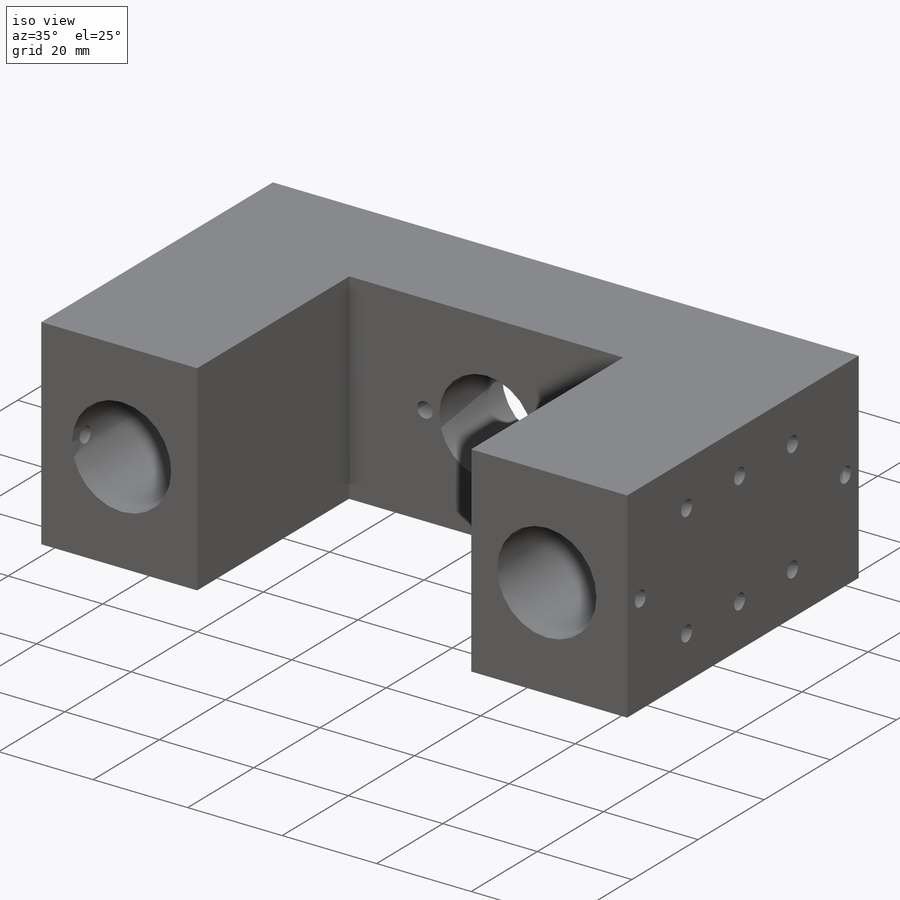
[diagram: iso view]
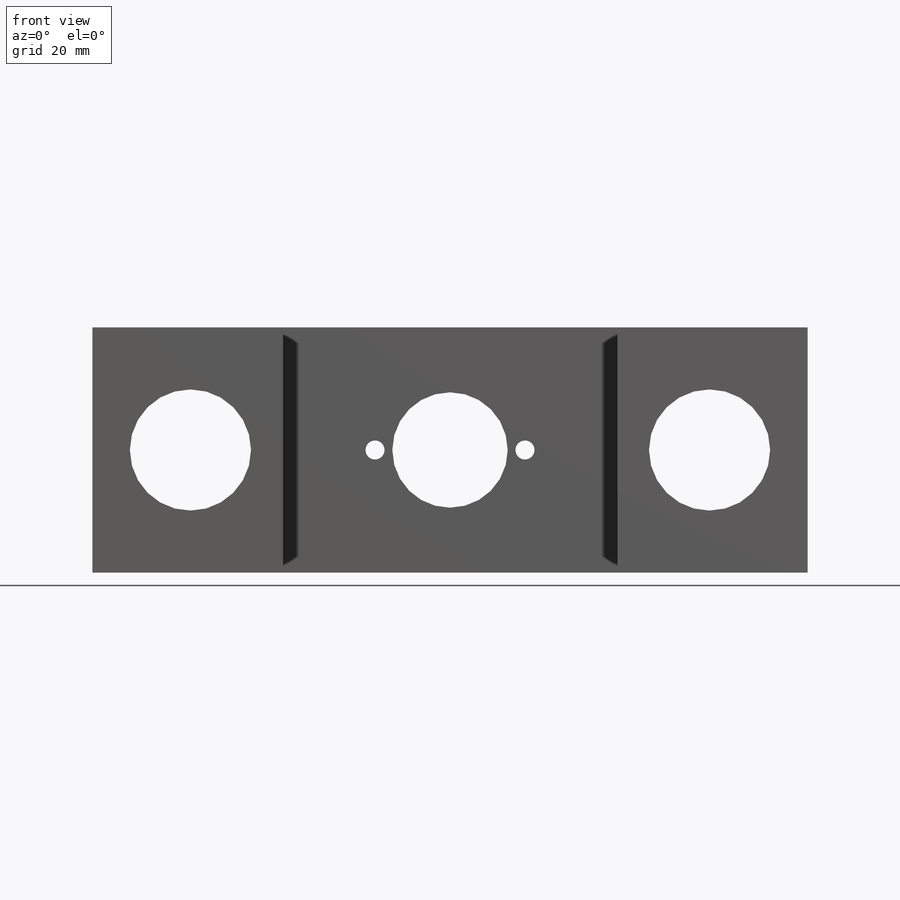
[diagram: front view]
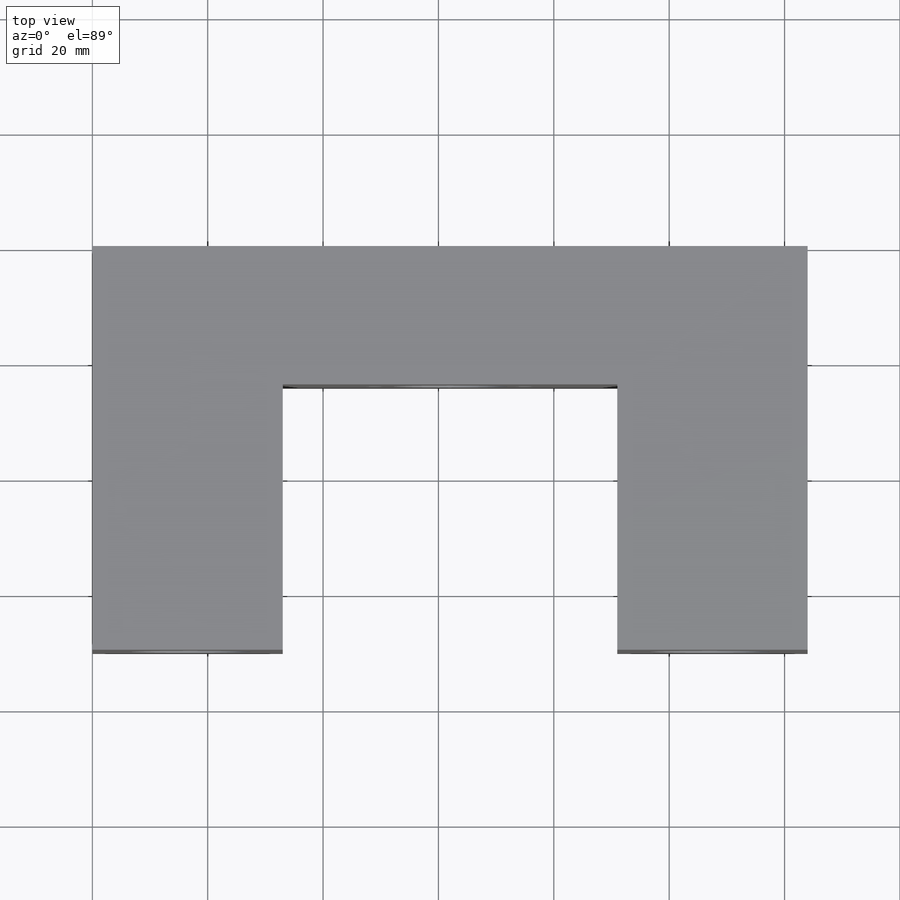
[diagram: top view]
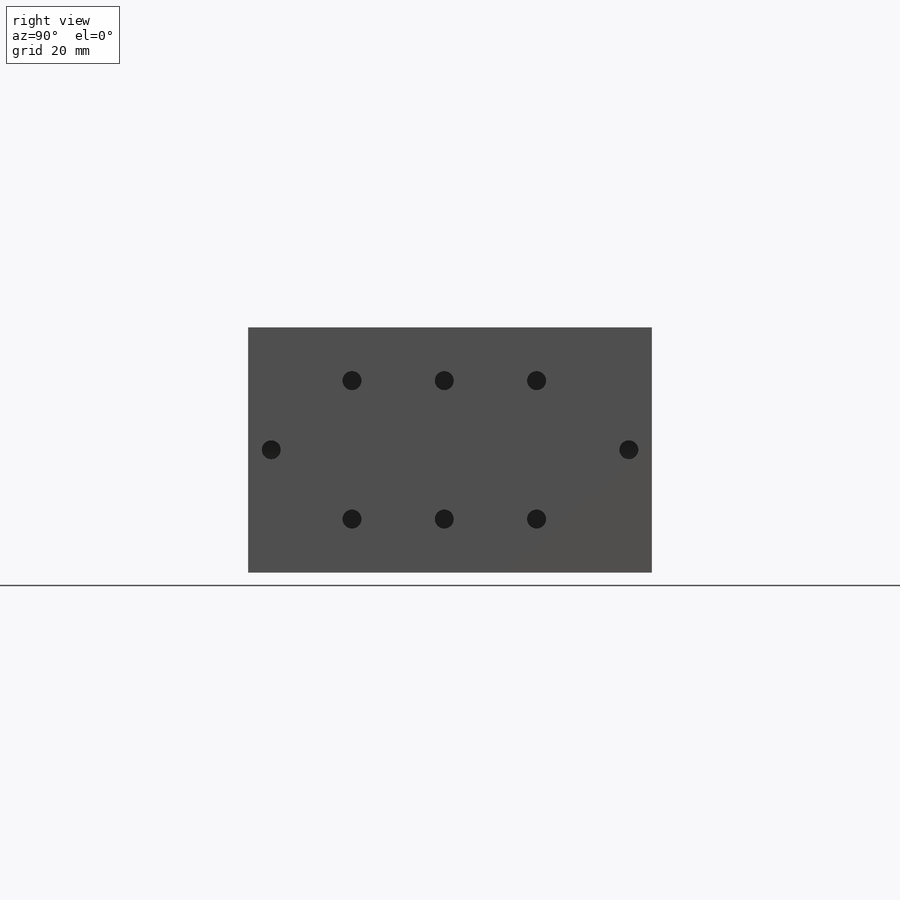
[diagram: right view]
SOLIDWORKS PART (.sldprt)
format: sldprt  version: not decoded by parser v0  size: 335,360 bytes
history: native  units: mm
features: sketch x6, cut_extrude x5, material x1, extrude x1 (+11 scaffold rows collapsed)
feature tree (24):
  scaffold x11  (default folders/planes/origin — collapsed)
  material  "6061-O (SS)"
  sketch  "Sketch1"  dims[c1.D5=21.0mm c1.D6=~43.919171mm c1.D7=3.3mm c1.D8=20.0mm c1.D1=124.0mm c1.D2=42.5mm c1.D3=17.0mm c1.D4=17.0mm c2.D6=26.0mm]
  extrude  "Boss-Extrude1"  Depth=70mm
  sketch  "Sketch2"  dims[D1=33.0mm D2=33.0mm]
  cut_extrude  "Cut-Extrude1"  Depth=24mm
  sketch  "Sketch3"  dims[D1=36.7mm]
  cut_extrude  "Cut-Extrude2"  Depth=5mm
  sketch  "Sketch5"  dims[c1.D1=3.3mm c1.D7=3.3mm c1.D2=24.0mm c1.D3=20.0mm c1.D5=12.0mm c1.D6=16.0mm c2.D5=16.0mm c2.D8=4.0mm c2.D9=4.0mm c2.D4=5.0]
  cut_extrude  "Cut-Extrude4"  Depth=12mm
  sketch  "Sketch6"  dims[D4=3.3mm D6=3.3mm D1=24.0mm D2=20.0mm D3=16.0mm D5=16.0mm D7=4.0mm D8=4.0mm]
  cut_extrude  "Cut-Extrude5"  Depth=12mm
  sketch  "Sketch4"  dims[D1=4.2mm D2=17.0mm D3=17.0mm D4=15.0mm D5=15.0mm D6=15.0mm D7=15.0mm]
  cut_extrude  "Cut-Extrude3"  [1 undecoded]
decode coverage: 11 of 12 modeling features carry decoded parameters
note: ~ marks probable driven/reference dimensions
note: 1 parameter value undecoded
note: suppression state not decoded; provenance and decode notes live in map.json
